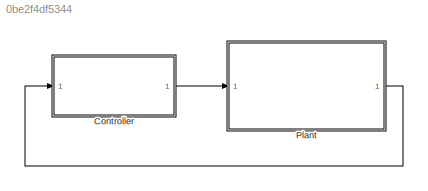
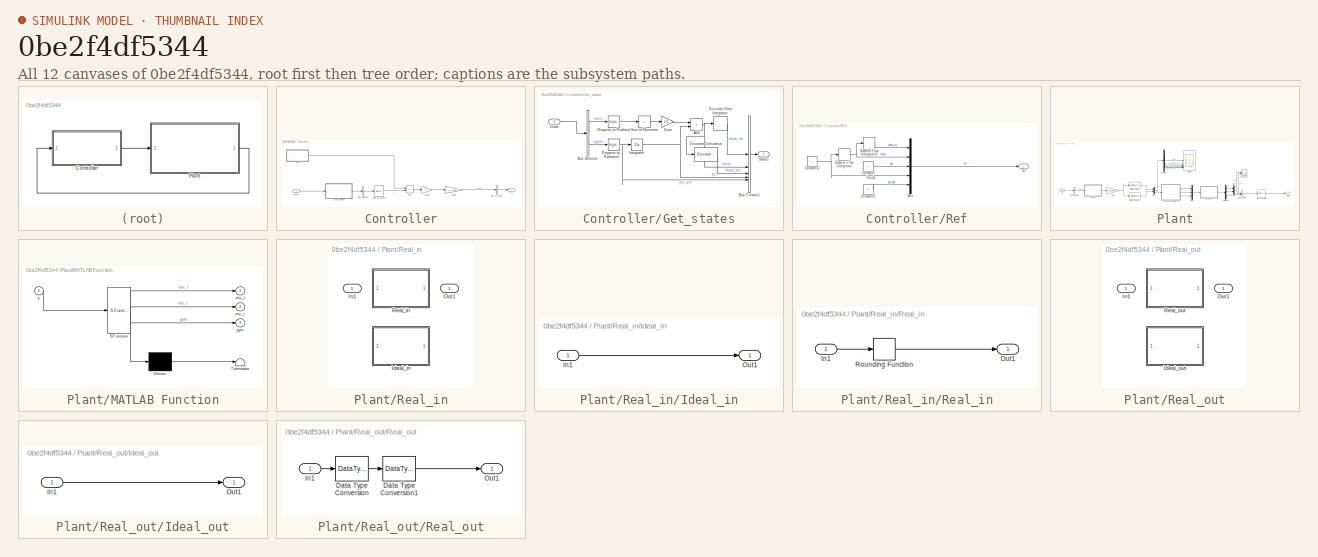
[diagram: thumbnail index - all 12 canvases of the model, root first then tree order]
MODEL slx_0be2f4df5344
KIND model
CONFIG AbsTol = auto
CONFIG EnableMultiTasking = off
CONFIG FixedStep = Ts
CONFIG InitFcn = plant\ncontrol
CONFIG MaxStep = Ts
CONFIG MinStep = auto
CONFIG PreLoadFcn = preload\nconf
CONFIG RelTol = 1e-3
CONFIG SampleTimeConstraint = Unconstrained
CONFIG SolverName = ode45
CONFIG StartTime = 0.0
CONFIG StopTime = 10.0
BLOCK [SubSystem] Controller
BLOCK [Sum] Controller/Add
  IconShape = rectangular
  Inputs = +-
BLOCK [BusCreator] Controller/Bus Creator
  DisplayOption = bar
  InheritFromInputs = on
  Inputs = 1
  OutDataTypeStr = Bus: Ctl
BLOCK [BusSelector] Controller/Bus Selector
  OutputAsBus = on
  OutputSignals = theta_int,theta,psi,theta_dot,psi_dot
BLOCK [BusToVector] Controller/Bus to Vector
BLOCK [Outport] Controller/Ctl
BLOCK [Inport] Controller/Data
BLOCK [Gain] Controller/Gain
  Gain = K
  Multiplication = Matrix(K*u)
BLOCK [Gain] Controller/Gain1
  Gain = K_PWM
BLOCK [SubSystem] Controller/Get_states
BLOCK [Sum] Controller/Get_states/Add
  IconShape = rectangular
BLOCK [BusCreator] Controller/Get_states/Bus Creator1
  DisplayOption = bar
  InheritFromInputs = on
  Inputs = 5
BLOCK [BusSelector] Controller/Get_states/Bus Selector
  OutputSignals = enc,gyro
BLOCK [Inport] Controller/Get_states/Data
BLOCK [Reference] Controller/Get_states/Degrees to Radians  REF=simulink_extras/Transformations/Degrees to
Radians
  SourceBlock = simulink_extras/Transformations/Degrees to\nRadians
  SourceType = DegreesToRadians
BLOCK [Reference] Controller/Get_states/Degrees to Radians1  REF=simulink_extras/Transformations/Degrees to
Radians
  SourceBlock = simulink_extras/Transformations/Degrees to\nRadians
  SourceType = DegreesToRadians
BLOCK [Reference] Controller/Get_states/Discrete Derivative  REF=simulink/Discrete/Discrete Derivative
  SourceBlock = simulink/Discrete/Discrete Derivative
  SourceType = Discrete Derivative
BLOCK [DiscreteIntegrator] Controller/Get_states/Discrete-Time Integrator
  ICPrevOutput = DiscIntNeverNeededParam
  ICPrevScaledInput = DiscIntNeverNeededParam
  InitialConditionSetting = Auto
  SampleTime = -1
BLOCK [Gain] Controller/Get_states/Gain
  Gain = 1/2
BLOCK [Integrator] Controller/Get_states/Integrator
BLOCK [Outport] Controller/Get_states/States
BLOCK [Sum] Controller/Get_states/Sum of Elements
  IconShape = rectangular
  Inputs = +
BLOCK [SubSystem] Controller/Ref
BLOCK [Constant] Controller/Ref/Constant
  Value = 0
BLOCK [Constant] Controller/Ref/Constant1
  Value = 0
BLOCK [Constant] Controller/Ref/Constant2
BLOCK [DiscreteIntegrator] Controller/Ref/Discrete-Time Integrator
  ICPrevOutput = DiscIntNeverNeededParam
  ICPrevScaledInput = DiscIntNeverNeededParam
  InitialConditionSetting = Auto
  SampleTime = -1
BLOCK [DiscreteIntegrator] Controller/Ref/Discrete-Time Integrator1
  ICPrevOutput = DiscIntNeverNeededParam
  ICPrevScaledInput = DiscIntNeverNeededParam
  InitialConditionSetting = Auto
  SampleTime = -1
BLOCK [Mux] Controller/Ref/Mux
  DisplayOption = bar
  Inputs = 5
BLOCK [Outport] Controller/Ref/ref
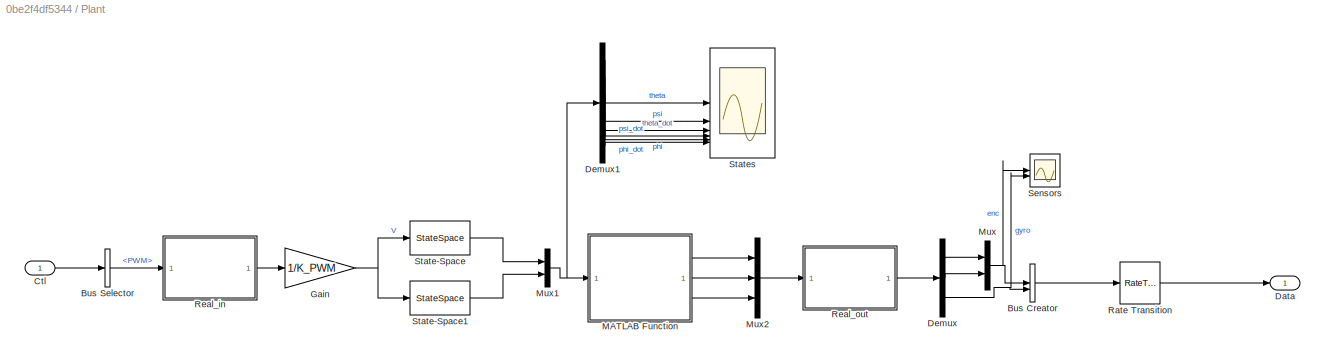
BLOCK [SubSystem] Plant
BLOCK [BusCreator] Plant/Bus Creator
  DisplayOption = bar
  InheritFromInputs = on
  Inputs = 2
  OutDataTypeStr = Bus: Data
BLOCK [BusSelector] Plant/Bus Selector
  OutputSignals = PWM
BLOCK [Inport] Plant/Ctl
BLOCK [Outport] Plant/Data
BLOCK [Demux] Plant/Demux
  Outputs = 3
BLOCK [Demux] Plant/Demux1
  Outputs = 6
BLOCK [Gain] Plant/Gain
  Gain = 1/K_PWM
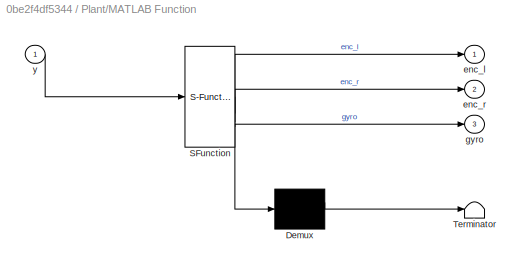
BLOCK [SubSystem] Plant/MATLAB Function
  ErrorFcn = Stateflow.Translate.translate
  LibrarySourceBlock = simulink/User-Defined\nFunctions/MATLAB Function
  PermitHierarchicalResolution = ExplicitOnly
  SFBlockType = MATLAB Function
  TreatAsAtomicUnit = on
BLOCK [Demux] Plant/MATLAB Function/ Demux 
  Outputs = 1
BLOCK [S-Function] Plant/MATLAB Function/ SFunction 
  EnableBusSupport = on
  FunctionName = sf_sfun
  Parameters = R,W
  PortCounts = [1 4]
  SFcnIsStateOwnerBlock = off
  SFunctionDeploymentMode = off
  Tag = Stateflow S-Function 2
BLOCK [Terminator] Plant/MATLAB Function/ Terminator 
BLOCK [Outport] Plant/MATLAB Function/enc_l
BLOCK [Outport] Plant/MATLAB Function/enc_r
  Port = 2
BLOCK [Outport] Plant/MATLAB Function/gyro
  Port = 3
BLOCK [Inport] Plant/MATLAB Function/y
BLOCK [Mux] Plant/Mux
  DisplayOption = bar
  Inputs = 2
BLOCK [Mux] Plant/Mux1
  DisplayOption = bar
  Inputs = 2
BLOCK [Mux] Plant/Mux2
  DisplayOption = bar
  Inputs = 3
BLOCK [RateTransition] Plant/Rate Transition
  OutPortSampleTime = Ts
BLOCK [SubSystem] Plant/Real_in
  Variant = on
  VariantControl = Choice
BLOCK [SubSystem] Plant/Real_in/Ideal_in
  VariantControl = (default)
BLOCK [Inport] Plant/Real_in/Ideal_in/In1
BLOCK [Outport] Plant/Real_in/Ideal_in/Out1
BLOCK [Inport] Plant/Real_in/In1
BLOCK [Outport] Plant/Real_in/Out1
BLOCK [SubSystem] Plant/Real_in/Real_in
  VariantControl = real_model == 1
BLOCK [Inport] Plant/Real_in/Real_in/In1
BLOCK [Outport] Plant/Real_in/Real_in/Out1
BLOCK [Rounding] Plant/Real_in/Real_in/Rounding Function
  Operator = round
BLOCK [SubSystem] Plant/Real_out
  Variant = on
  VariantControl = Choice
BLOCK [SubSystem] Plant/Real_out/Ideal_out
  VariantControl = (default)
BLOCK [Inport] Plant/Real_out/Ideal_out/In1
BLOCK [Outport] Plant/Real_out/Ideal_out/Out1
BLOCK [Inport] Plant/Real_out/In1
BLOCK [Outport] Plant/Real_out/Out1
BLOCK [SubSystem] Plant/Real_out/Real_out
  VariantControl = real_model == 1
BLOCK [DataTypeConversion] Plant/Real_out/Real_out/Data Type Conversion
  OutDataTypeStr = int32
  RndMeth = Floor
  SaturateOnIntegerOverflow = off
BLOCK [DataTypeConversion] Plant/Real_out/Real_out/Data Type Conversion1
  OutDataTypeStr = double
  RndMeth = Floor
  SaturateOnIntegerOverflow = off
BLOCK [Inport] Plant/Real_out/Real_out/In1
BLOCK [Outport] Plant/Real_out/Real_out/Out1
BLOCK [Scope] Plant/Sensors
  Floating = off
  NumInputPorts = 2
  ScopeSpecificationString = Simulink.scopes.TimeScopeBlockCfg('CurrentConfiguration', extmgr.ConfigurationSet(extmgr.Configuration('Core','General UI',true),extmgr.Configuration('Core','Source UI',true),extmgr.Configuration('Sources','WiredSimulink',true,'DataLoggingVariableName','ScopeData1'),extmgr.Configuration('Visuals','Time Domain',true,'SerializedDisplays',{struct('MinYLimReal','-78.1382','MaxYLimReal','645.7559','YLa...<+2050ch>
BLOCK [StateSpace] Plant/State-Space
  A = A1
  B = B1
  C = C1
  D = D1
  InitialCondition = [0 Psi0 0 0]
BLOCK [StateSpace] Plant/State-Space1
  A = A2
  B = B2
  C = C2
  D = D2
  InitialCondition = 0
BLOCK [Scope] Plant/States
  Floating = off
  NumInputPorts = 6
  ScopeSpecificationString = Simulink.scopes.TimeScopeBlockCfg('CurrentConfiguration', extmgr.ConfigurationSet(extmgr.Configuration('Core','General UI',true),extmgr.Configuration('Core','Source UI',true),extmgr.Configuration('Sources','WiredSimulink',true),extmgr.Configuration('Visuals','Time Domain',true,'SerializedDisplays',{struct('MinYLimReal','-1.33263','MaxYLimReal','11.26265','YLabelReal','','MinYLimMag','0.00000','Max...<+4859ch>
LINE Controller/Add:1 -> Controller/Gain:1
LINE Controller/Bus Creator:1 -> Controller/Ctl:1
LINE Controller/Bus Selector:1 -> Controller/Bus to Vector:1
LINE Controller/Bus to Vector:1 -> Controller/Add:2
LINE Controller/Data:1 -> Controller/Get_states:1
LINE Controller/Gain1:1 -> Controller/Bus Creator:1
LINE Controller/Gain:1 -> Controller/Gain1:1
NET Controller/Get_states/Add:1 -> Controller/Get_states/Bus Creator1:2, Controller/Get_states/Discrete Derivative:1, Controller/Get_states/Discrete-Time Integrator:1
LINE Controller/Get_states/Bus Creator1:1 -> Controller/Get_states/States:1
LINE Controller/Get_states/Bus Selector:1 -> Controller/Get_states/Degrees to Radians:1
LINE Controller/Get_states/Bus Selector:2 -> Controller/Get_states/Degrees to Radians1:1
LINE Controller/Get_states/Data:1 -> Controller/Get_states/Bus Selector:1
NET Controller/Get_states/Degrees to Radians1:1 -> Controller/Get_states/Bus Creator1:5, Controller/Get_states/Integrator:1
LINE Controller/Get_states/Degrees to Radians:1 -> Controller/Get_states/Sum of Elements:1
LINE Controller/Get_states/Discrete Derivative:1 -> Controller/Get_states/Bus Creator1:3
LINE Controller/Get_states/Discrete-Time Integrator:1 -> Controller/Get_states/Bus Creator1:1
LINE Controller/Get_states/Gain:1 -> Controller/Get_states/Add:1
NET Controller/Get_states/Integrator:1 -> Controller/Get_states/Add:2, Controller/Get_states/Bus Creator1:4
LINE Controller/Get_states/Sum of Elements:1 -> Controller/Get_states/Gain:1
LINE Controller/Get_states:1 -> Controller/Bus Selector:1
LINE Controller/Ref/Constant1:1 -> Controller/Ref/Mux:5
NET Controller/Ref/Constant2:1 -> Controller/Ref/Discrete-Time Integrator:1, Controller/Ref/Mux:4
LINE Controller/Ref/Constant:1 -> Controller/Ref/Mux:3
LINE Controller/Ref/Discrete-Time Integrator1:1 -> Controller/Ref/Mux:1
NET Controller/Ref/Discrete-Time Integrator:1 -> Controller/Ref/Discrete-Time Integrator1:1, Controller/Ref/Mux:2
LINE Controller/Ref/Mux:1 -> Controller/Ref/ref:1
LINE Controller/Ref:1 -> Controller/Add:1
LINE Controller:1 -> Plant:1
LINE Plant/Bus Creator:1 -> Plant/Rate Transition:1
LINE Plant/Bus Selector:1 -> Plant/Real_in:1
LINE Plant/Ctl:1 -> Plant/Bus Selector:1
LINE Plant/Demux1:1 -> Plant/States:1
LINE Plant/Demux1:2 -> Plant/States:2
LINE Plant/Demux1:3 -> Plant/States:3
LINE Plant/Demux1:4 -> Plant/States:4
LINE Plant/Demux1:5 -> Plant/States:5
LINE Plant/Demux1:6 -> Plant/States:6
LINE Plant/Demux:1 -> Plant/Mux:1
LINE Plant/Demux:2 -> Plant/Mux:2
NET Plant/Demux:3 -> Plant/Bus Creator:2, Plant/Sensors:2
NET Plant/Gain:1 -> Plant/State-Space1:1, Plant/State-Space:1
LINE Plant/MATLAB Function:1 -> Plant/Mux2:1
LINE Plant/MATLAB Function:2 -> Plant/Mux2:2
LINE Plant/MATLAB Function:3 -> Plant/Mux2:3
NET Plant/Mux1:1 -> Plant/Demux1:1, Plant/MATLAB Function:1
LINE Plant/Mux2:1 -> Plant/Real_out:1
NET Plant/Mux:1 -> Plant/Bus Creator:1, Plant/Sensors:1
LINE Plant/Rate Transition:1 -> Plant/Data:1
LINE Plant/Real_in/Ideal_in/In1:1 -> Plant/Real_in/Ideal_in/Out1:1
LINE Plant/Real_in/Real_in/In1:1 -> Plant/Real_in/Real_in/Rounding Function:1
LINE Plant/Real_in/Real_in/Rounding Function:1 -> Plant/Real_in/Real_in/Out1:1
LINE Plant/Real_in:1 -> Plant/Gain:1
LINE Plant/Real_out/Ideal_out/In1:1 -> Plant/Real_out/Ideal_out/Out1:1
LINE Plant/Real_out/Real_out/Data Type Conversion1:1 -> Plant/Real_out/Real_out/Out1:1
LINE Plant/Real_out/Real_out/Data Type Conversion:1 -> Plant/Real_out/Real_out/Data Type Conversion1:1
LINE Plant/Real_out/Real_out/In1:1 -> Plant/Real_out/Real_out/Data Type Conversion:1
LINE Plant/Real_out:1 -> Plant/Demux:1
LINE Plant/State-Space1:1 -> Plant/Mux1:2
LINE Plant/State-Space:1 -> Plant/Mux1:1
LINE Plant:1 -> Controller:1
note: NET lines group one-source signal fan-out (src -> all destinations, sorted); 1:1 wires keep LINE
CHART Plant/MATLAB Function states=1 transitions=1
  STATE_LABEL 'eML_blk_kernel()'
  STATE_LABEL 'SCRIPT:\nfunction [enc_l, enc_r, gyro] = sensors(y, R, W)\nenc_l = rad2deg(y(1) - W/R/2 * y(5) - y(2));\nenc_r = rad2deg(y(1) + W/R/2 * y(5) - y(2));\ngyro = rad2deg(y(4));\n'
CHART  states=0 transitions=0
